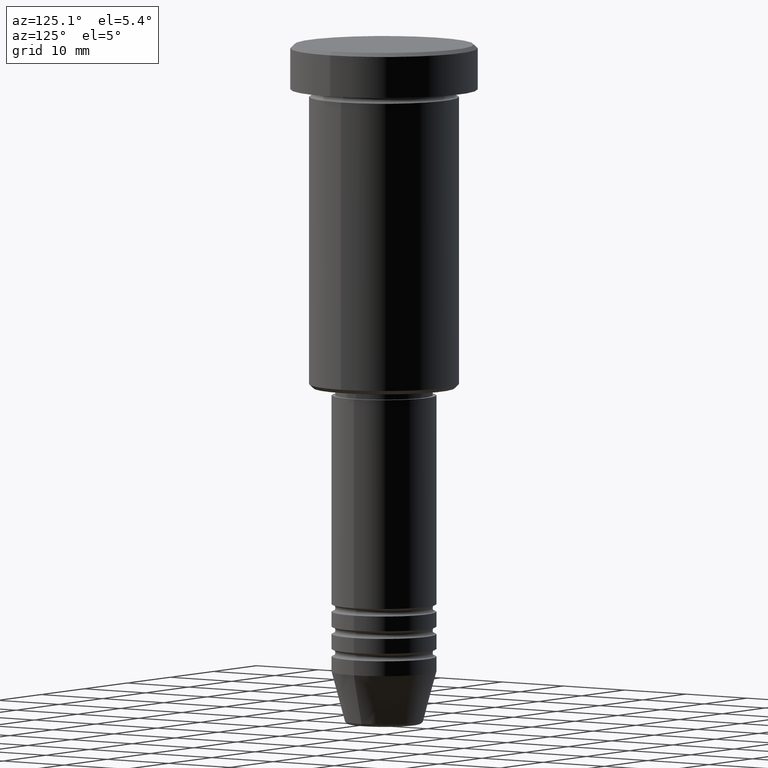
[diagram: clean part render]
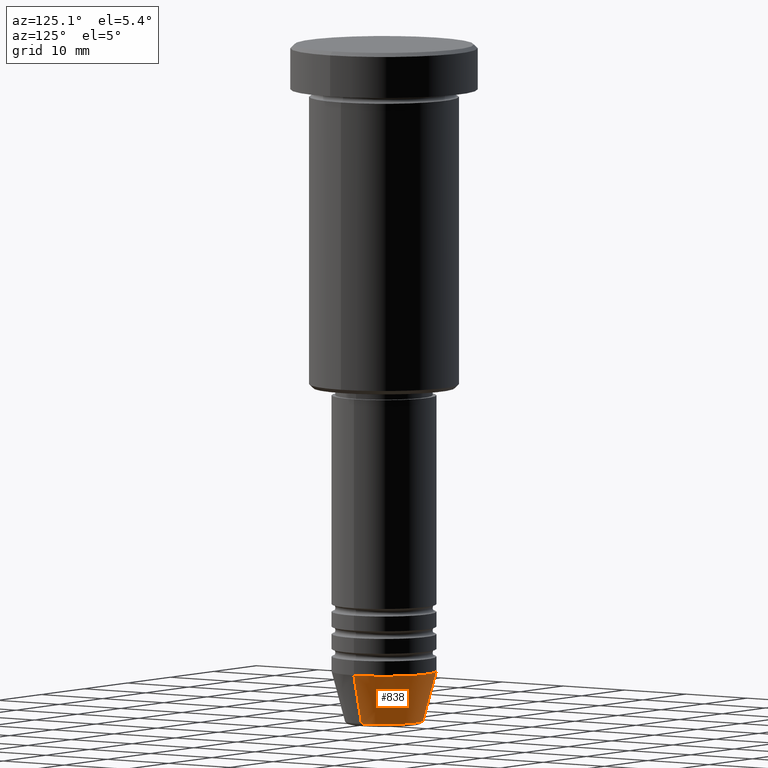
[diagram: same view with one face highlighted and labeled with its STEP entity id]
A machine part, auxiliary view. The second image highlights one B-rep face of the part: STEP entity #838.
In plain terms, the highlighted conical surface has half-angle 15 deg.
Its self-contained STEP definition (entity closure, byte-faithful):
#14 = DIRECTION ( 'NONE',  ( -0.000000000000000000, -0.000000000000000000, 1.000000000000000000 ) ) ;
#19 = AXIS2_PLACEMENT_3D ( 'NONE', #587, #49, #97 ) ;
#49 = DIRECTION ( 'NONE',  ( -0.000000000000000000, -0.000000000000000000, 1.000000000000000000 ) ) ;
#88 = VECTOR ( 'NONE', #252, 1000.000000000000000 ) ;
#97 = DIRECTION ( 'NONE',  ( 1.000000000000000000, 0.000000000000000000, 0.000000000000000000 ) ) ;
#156 = EDGE_CURVE ( 'NONE', #1175, #225, #523, .T. ) ;
#225 = VERTEX_POINT ( 'NONE', #1126 ) ;
#236 = AXIS2_PLACEMENT_3D ( 'NONE', #1029, #14, #405 ) ;
#252 = DIRECTION ( 'NONE',  ( -0.2588190451025214056, 3.169619151431772953E-17, 0.9659258262890680902 ) ) ;
#372 = ORIENTED_EDGE ( 'NONE', *, *, #603, .T. ) ;
#405 = DIRECTION ( 'NONE',  ( 1.000000000000000000, 0.000000000000000000, 0.000000000000000000 ) ) ;
#412 = DIRECTION ( 'NONE',  ( 1.000000000000000000, 0.000000000000000000, 0.000000000000000000 ) ) ;
#437 = CARTESIAN_POINT ( 'NONE',  ( -7.000000000000000000, 8.572527594031473190E-16, -83.99999999999998579 ) ) ;
#454 = DIRECTION ( 'NONE',  ( 0.2588190451025214056, 0.000000000000000000, 0.9659258262890680902 ) ) ;
#456 = ORIENTED_EDGE ( 'NONE', *, *, #874, .F. ) ;
#459 = CARTESIAN_POINT ( 'NONE',  ( 7.000000000000000000, 0.000000000000000000, -83.99999999999998579 ) ) ;
#464 = CARTESIAN_POINT ( 'NONE',  ( 0.000000000000000000, 0.000000000000000000, -83.99999999999998579 ) ) ;
#469 = VERTEX_POINT ( 'NONE', #539 ) ;
#471 = CONICAL_SURFACE ( 'NONE', #19, 7.000000000000000000, 0.2617993877991501295 ) ;
#523 = CIRCLE ( 'NONE', #236, 5.223655072137187716 ) ;
#534 = EDGE_LOOP ( 'NONE', ( #1045, #372, #456, #796 ) ) ;
#539 = CARTESIAN_POINT ( 'NONE',  ( -7.000000000000000000, 8.572527594031473190E-16, -83.99999999999998579 ) ) ;
#547 = DIRECTION ( 'NONE',  ( -0.000000000000000000, -0.000000000000000000, 1.000000000000000000 ) ) ;
#587 = CARTESIAN_POINT ( 'NONE',  ( 0.000000000000000000, 0.000000000000000000, -83.99999999999998579 ) ) ;
#603 = EDGE_CURVE ( 'NONE', #225, #469, #719, .T. ) ;
#626 = LINE ( 'NONE', #894, #771 ) ;
#647 = FACE_OUTER_BOUND ( 'NONE', #534, .T. ) ;
#655 = EDGE_CURVE ( 'NONE', #1175, #893, #626, .T. ) ;
#719 = LINE ( 'NONE', #437, #88 ) ;
#771 = VECTOR ( 'NONE', #454, 1000.000000000000000 ) ;
#796 = ORIENTED_EDGE ( 'NONE', *, *, #655, .F. ) ;
#822 = CIRCLE ( 'NONE', #1070, 7.000000000000000000 ) ;
#838 = ADVANCED_FACE ( 'NONE', ( #647 ), #471, .T. ) ;
#874 = EDGE_CURVE ( 'NONE', #893, #469, #822, .T. ) ;
#893 = VERTEX_POINT ( 'NONE', #459 ) ;
#894 = CARTESIAN_POINT ( 'NONE',  ( 7.000000000000000000, 0.000000000000000000, -83.99999999999998579 ) ) ;
#1029 = CARTESIAN_POINT ( 'NONE',  ( 0.000000000000000000, 0.000000000000000000, -90.62940952255125637 ) ) ;
#1045 = ORIENTED_EDGE ( 'NONE', *, *, #156, .T. ) ;
#1070 = AXIS2_PLACEMENT_3D ( 'NONE', #464, #547, #412 ) ;
#1126 = CARTESIAN_POINT ( 'NONE',  ( -5.223655072137187716, 7.484830028987059188E-16, -90.62940952255125637 ) ) ;
#1138 = CARTESIAN_POINT ( 'NONE',  ( 5.223655072137187716, 0.000000000000000000, -90.62940952255125637 ) ) ;
#1175 = VERTEX_POINT ( 'NONE', #1138 ) ;